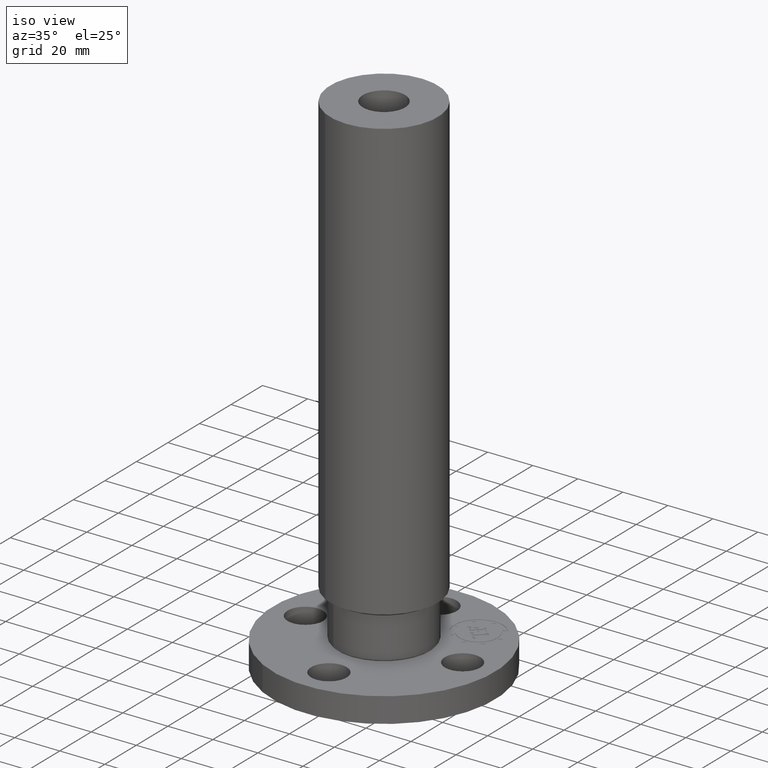
[diagram: clean part render]
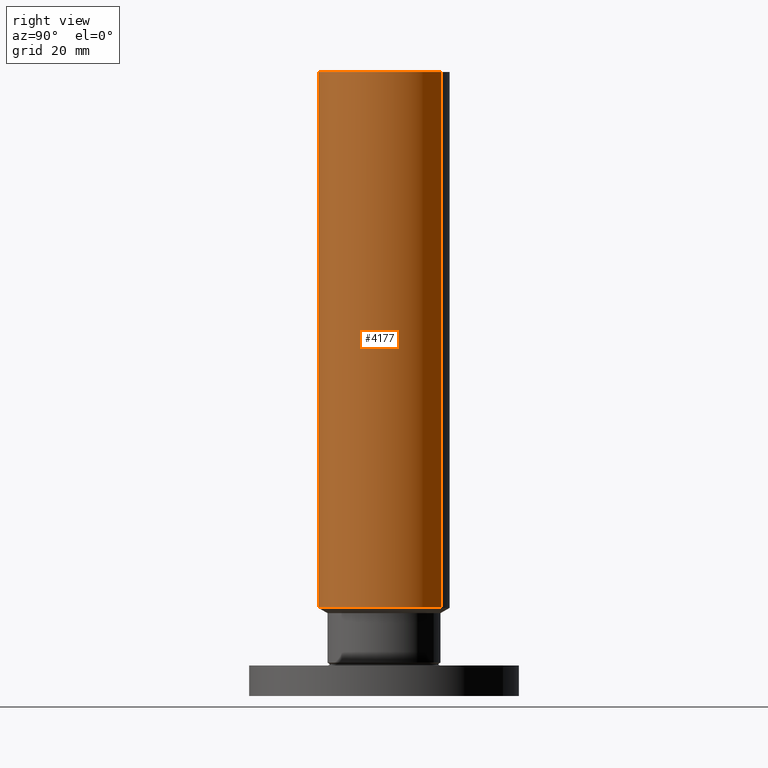
[diagram: tour spotlight — one face highlighted and labeled with its STEP entity id]
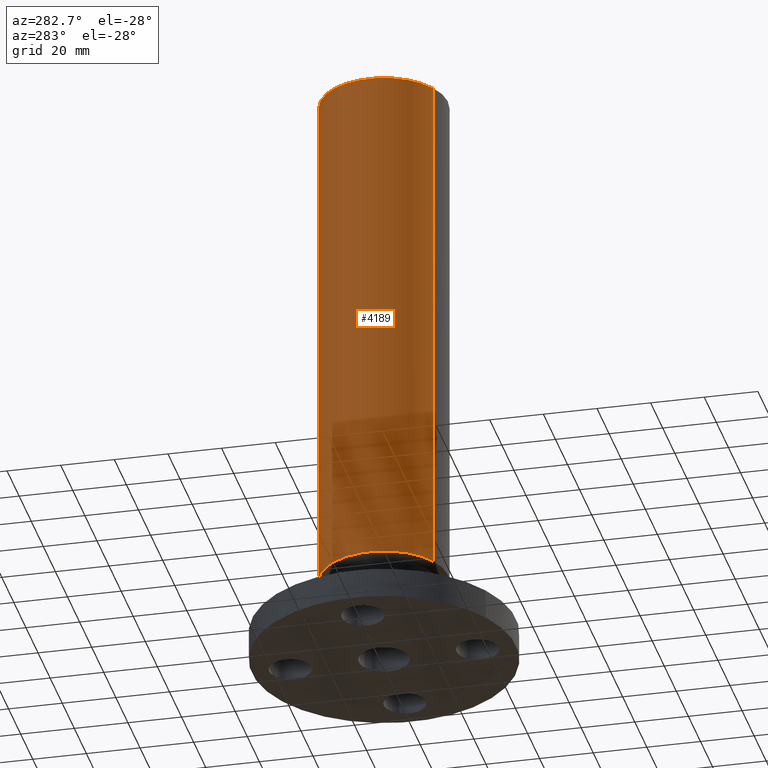
[diagram: tour spotlight — one face highlighted and labeled with its STEP entity id]
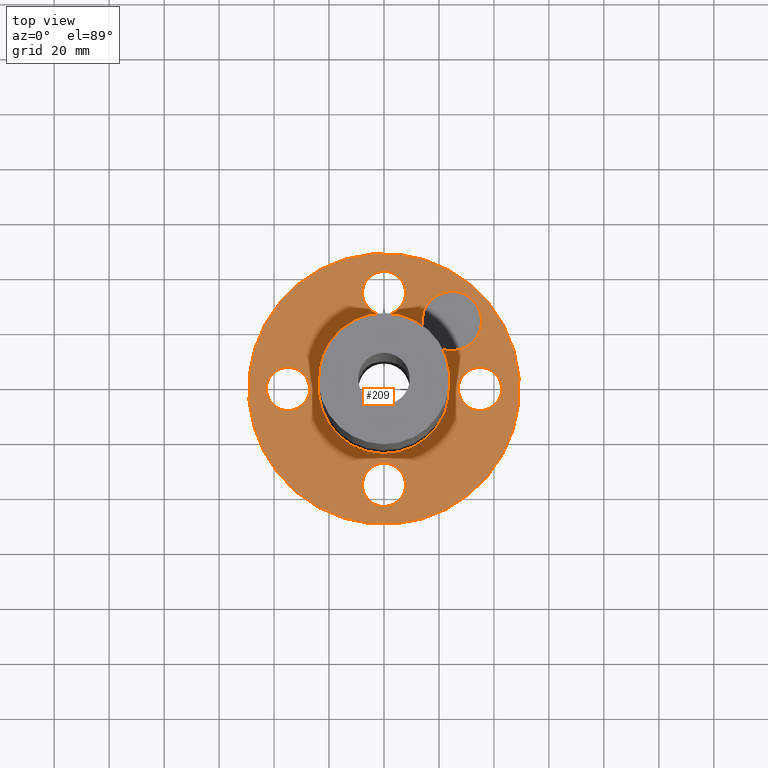
[diagram: tour spotlight — one face highlighted and labeled with its STEP entity id]
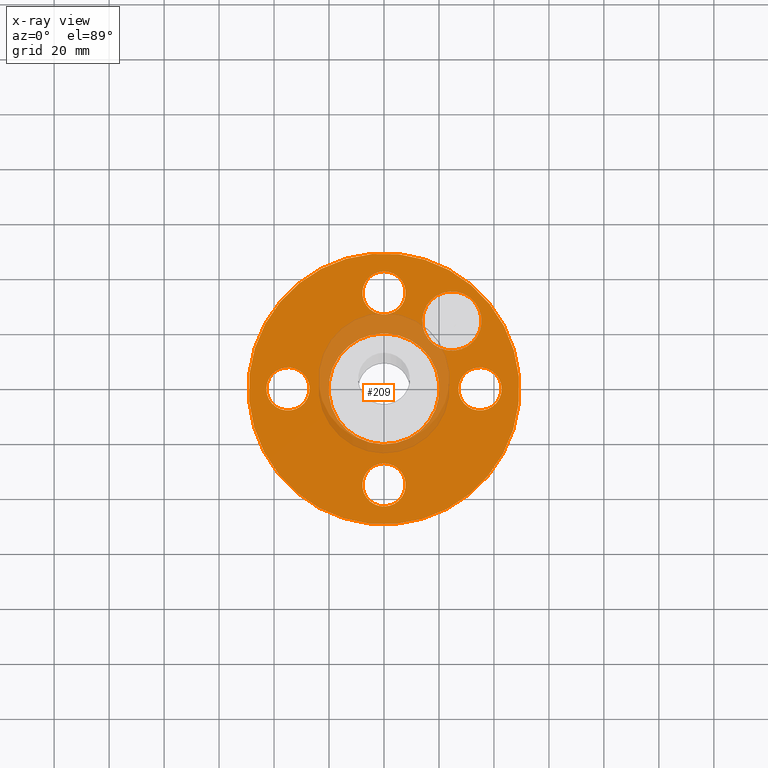
[diagram: x-ray of the same camera — body ghosted, this tour face saturated]
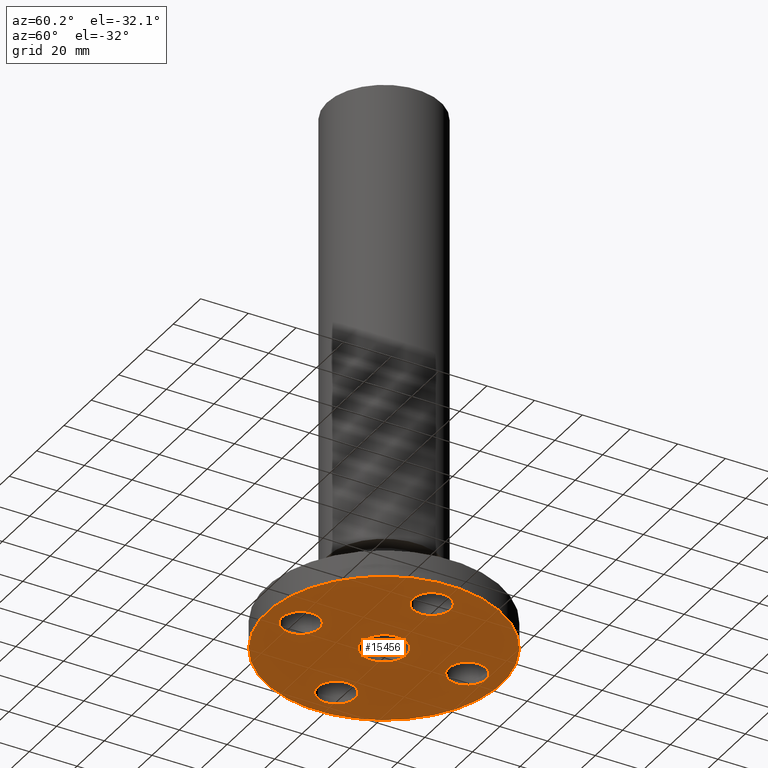
[diagram: tour spotlight — one face highlighted and labeled with its STEP entity id]
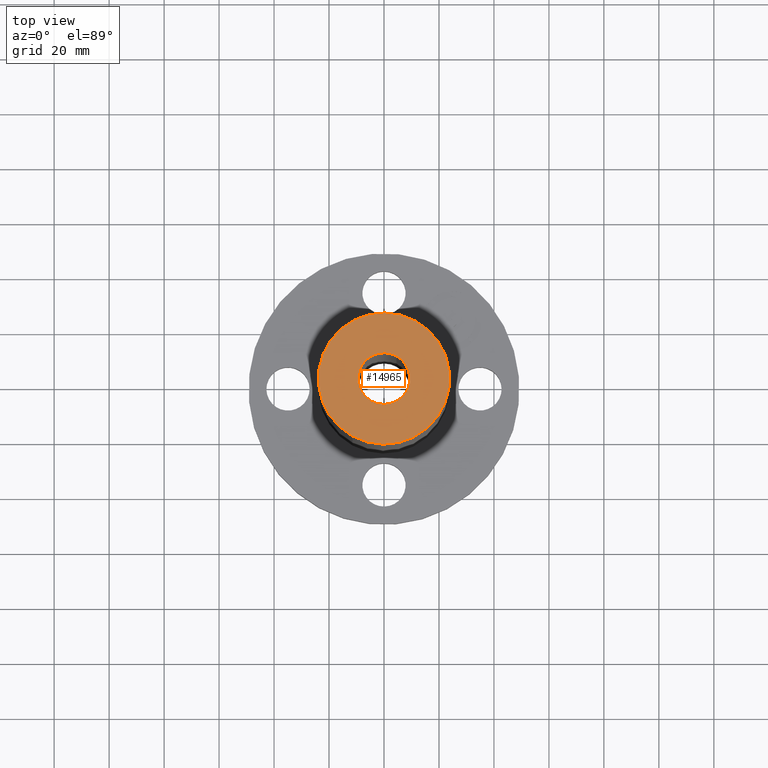
[diagram: tour spotlight — one face highlighted and labeled with its STEP entity id]
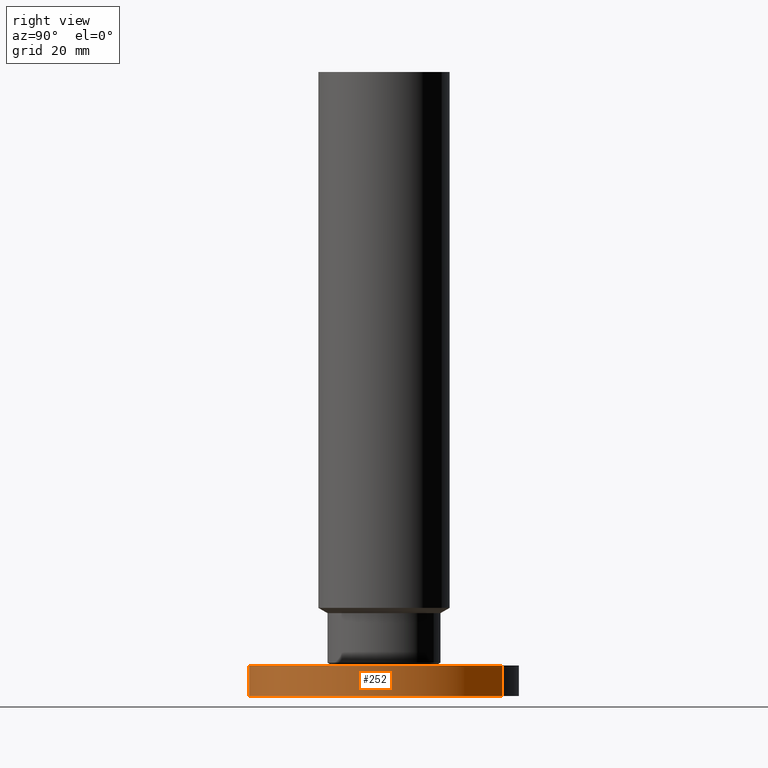
[diagram: tour spotlight — one face highlighted and labeled with its STEP entity id]
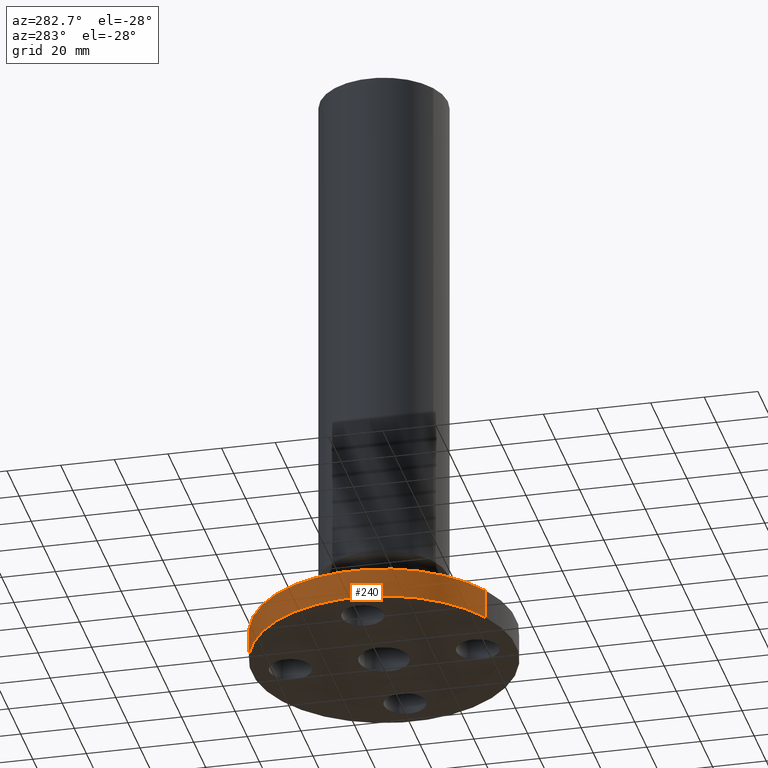
[diagram: tour spotlight — one face highlighted and labeled with its STEP entity id]
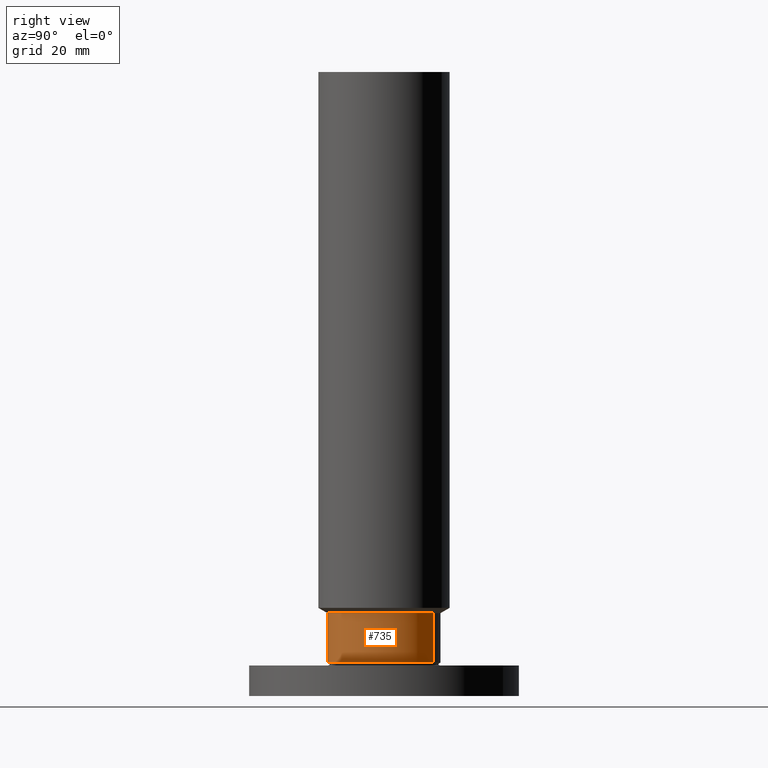
[diagram: tour spotlight — one face highlighted and labeled with its STEP entity id]
A machine part: a face-by-face anatomy tour. The part has 410 B-rep faces; the first image is the clean iso view, then the 8 largest visible faces are spotlighted one at a time (largest first), each with its STEP entity span.

Face 1 — right view, entity #4177. In plain terms, the highlighted cylindrical surface (partial cylindrical patch) has radius 23.876 mm, axis along (0, 0, -1).
Definition (entity closure, byte-faithful):
#1275=AXIS2_PLACEMENT_3D('Circle Axis2P3D',#1273,#1274,$) ;
#4150=AXIS2_PLACEMENT_3D('Cylinder Axis2P3D',#4147,#4148,#4149) ;
#4161=AXIS2_PLACEMENT_3D('Circle Axis2P3D',#4159,#4160,$) ;
#1270=CARTESIAN_POINT('Vertex',(0.45066000629,0.82492760818,1.262555535)) ;
#1273=CARTESIAN_POINT('Axis2P3D Location',(0.,0.,1.262555535)) ;
#1277=CARTESIAN_POINT('Vertex',(-0.45066000629,-0.82492760818,1.262555535)) ;
#4147=CARTESIAN_POINT('Axis2P3D Location',(0.,0.,4.43750000002)) ;
#4152=CARTESIAN_POINT('Line Origine',(0.45066000629,0.82492760818,5.10002776752)) ;
#4156=CARTESIAN_POINT('Vertex',(0.45066000629,0.82492760818,8.93750000004)) ;
#4159=CARTESIAN_POINT('Axis2P3D Location',(0.,0.,8.93750000004)) ;
#4163=CARTESIAN_POINT('Vertex',(-0.45066000629,-0.82492760818,8.93750000004)) ;
#4166=CARTESIAN_POINT('Line Origine',(-0.45066000629,-0.82492760818,5.10002776752)) ;
#1274=DIRECTION('Axis2P3D Direction',(-0.,0.,0.0393700787402)) ;
#4148=DIRECTION('Axis2P3D Direction',(0.,0.,-0.0393700787402)) ;
#4149=DIRECTION('Axis2P3D XDirection',(-0.0188750212049,-0.0345504945626,0.)) ;
#4153=DIRECTION('Vector Direction',(0.,0.,-0.0393700787402)) ;
#4160=DIRECTION('Axis2P3D Direction',(0.,0.,-0.0393700787402)) ;
#4167=DIRECTION('Vector Direction',(0.,0.,-0.0393700787402)) ;
#4154=VECTOR('Line Direction',#4153,0.0393700787402) ;
#4168=VECTOR('Line Direction',#4167,0.0393700787402) ;
#4172=ORIENTED_EDGE('',*,*,#1279,.F.) ;
#4173=ORIENTED_EDGE('',*,*,#4158,.T.) ;
#4174=ORIENTED_EDGE('',*,*,#4165,.T.) ;
#4175=ORIENTED_EDGE('',*,*,#4170,.F.) ;
#4177=ADVANCED_FACE('PartBody',(#4176),#4151,.T.) ;
#1276=CIRCLE('generated circle',#1275,0.940000000004) ;
#4162=CIRCLE('generated circle',#4161,0.940000000004) ;
#4151=CYLINDRICAL_SURFACE('generated cylinder',#4150,0.940000000004) ;
#1279=EDGE_CURVE('',#1271,#1278,#1276,.F.) ;
#4158=EDGE_CURVE('',#1271,#4157,#4155,.F.) ;
#4165=EDGE_CURVE('',#4157,#4164,#4162,.T.) ;
#4170=EDGE_CURVE('',#1278,#4164,#4169,.F.) ;
#4171=EDGE_LOOP('',(#4172,#4173,#4174,#4175)) ;
#4176=FACE_OUTER_BOUND('',#4171,.T.) ;
#4155=LINE('Line',#4152,#4154) ;
#4169=LINE('Line',#4166,#4168) ;
#1271=VERTEX_POINT('',#1270) ;
#1278=VERTEX_POINT('',#1277) ;
#4157=VERTEX_POINT('',#4156) ;
#4164=VERTEX_POINT('',#4163) ;

Face 2 — auxiliary view, entity #4189. In plain terms, the highlighted cylindrical surface (partial cylindrical patch) has radius 23.876 mm, axis along (0, 0, -1).
Definition (entity closure, byte-faithful):
#1294=AXIS2_PLACEMENT_3D('Circle Axis2P3D',#1292,#1293,$) ;
#4150=AXIS2_PLACEMENT_3D('Cylinder Axis2P3D',#4147,#4148,#4149) ;
#4180=AXIS2_PLACEMENT_3D('Circle Axis2P3D',#4178,#4179,$) ;
#1270=CARTESIAN_POINT('Vertex',(0.45066000629,0.82492760818,1.262555535)) ;
#1277=CARTESIAN_POINT('Vertex',(-0.45066000629,-0.82492760818,1.262555535)) ;
#1292=CARTESIAN_POINT('Axis2P3D Location',(0.,0.,1.262555535)) ;
#4147=CARTESIAN_POINT('Axis2P3D Location',(0.,0.,4.43750000002)) ;
#4152=CARTESIAN_POINT('Line Origine',(0.45066000629,0.82492760818,5.10002776752)) ;
#4156=CARTESIAN_POINT('Vertex',(0.45066000629,0.82492760818,8.93750000004)) ;
#4163=CARTESIAN_POINT('Vertex',(-0.45066000629,-0.82492760818,8.93750000004)) ;
#4166=CARTESIAN_POINT('Line Origine',(-0.45066000629,-0.82492760818,5.10002776752)) ;
#4178=CARTESIAN_POINT('Axis2P3D Location',(0.,0.,8.93750000004)) ;
#1293=DIRECTION('Axis2P3D Direction',(-0.,0.,0.0393700787402)) ;
#4148=DIRECTION('Axis2P3D Direction',(0.,0.,-0.0393700787402)) ;
#4149=DIRECTION('Axis2P3D XDirection',(-0.0188750212049,-0.0345504945626,0.)) ;
#4153=DIRECTION('Vector Direction',(0.,0.,-0.0393700787402)) ;
#4167=DIRECTION('Vector Direction',(0.,0.,-0.0393700787402)) ;
#4179=DIRECTION('Axis2P3D Direction',(0.,0.,-0.0393700787402)) ;
#4154=VECTOR('Line Direction',#4153,0.0393700787402) ;
#4168=VECTOR('Line Direction',#4167,0.0393700787402) ;
#4184=ORIENTED_EDGE('',*,*,#1296,.F.) ;
#4185=ORIENTED_EDGE('',*,*,#4170,.T.) ;
#4186=ORIENTED_EDGE('',*,*,#4182,.T.) ;
#4187=ORIENTED_EDGE('',*,*,#4158,.F.) ;
#4189=ADVANCED_FACE('PartBody',(#4188),#4151,.T.) ;
#1295=CIRCLE('generated circle',#1294,0.940000000004) ;
#4181=CIRCLE('generated circle',#4180,0.940000000004) ;
#4151=CYLINDRICAL_SURFACE('generated cylinder',#4150,0.940000000004) ;
#1296=EDGE_CURVE('',#1278,#1271,#1295,.F.) ;
#4158=EDGE_CURVE('',#1271,#4157,#4155,.F.) ;
#4170=EDGE_CURVE('',#1278,#4164,#4169,.F.) ;
#4182=EDGE_CURVE('',#4164,#4157,#4181,.T.) ;
#4183=EDGE_LOOP('',(#4184,#4185,#4186,#4187)) ;
#4188=FACE_OUTER_BOUND('',#4183,.T.) ;
#4155=LINE('Line',#4152,#4154) ;
#4169=LINE('Line',#4166,#4168) ;
#1271=VERTEX_POINT('',#1270) ;
#1278=VERTEX_POINT('',#1277) ;
#4157=VERTEX_POINT('',#4156) ;
#4164=VERTEX_POINT('',#4163) ;

Face 3 — top view, entity #209. An x-ray twin of the same camera follows (body ghosted, this face saturated) — the face is partly hidden behind the body. In plain terms, the highlighted planar face has unit normal (0, 0, -1).
Definition (entity closure, byte-faithful):
#51=AXIS2_PLACEMENT_3D('Circle Axis2P3D',#49,#50,$) ;
#77=AXIS2_PLACEMENT_3D('Circle Axis2P3D',#75,#76,$) ;
#95=AXIS2_PLACEMENT_3D('Plane Axis2P3D',#92,#93,#94) ;
#99=AXIS2_PLACEMENT_3D('Circle Axis2P3D',#97,#98,$) ;
#108=AXIS2_PLACEMENT_3D('Circle Axis2P3D',#106,#107,$) ;
#121=AXIS2_PLACEMENT_3D('Circle Axis2P3D',#119,#120,$) ;
#130=AXIS2_PLACEMENT_3D('Circle Axis2P3D',#128,#129,$) ;
#139=AXIS2_PLACEMENT_3D('Circle Axis2P3D',#137,#138,$) ;
#148=AXIS2_PLACEMENT_3D('Circle Axis2P3D',#146,#147,$) ;
#157=AXIS2_PLACEMENT_3D('Circle Axis2P3D',#155,#156,$) ;
#166=AXIS2_PLACEMENT_3D('Circle Axis2P3D',#164,#165,$) ;
#175=AXIS2_PLACEMENT_3D('Circle Axis2P3D',#173,#174,$) ;
#184=AXIS2_PLACEMENT_3D('Circle Axis2P3D',#182,#183,$) ;
#193=AXIS2_PLACEMENT_3D('Circle Axis2P3D',#191,#192,$) ;
#202=AXIS2_PLACEMENT_3D('Circle Axis2P3D',#200,#201,$) ;
#44=CARTESIAN_POINT('Vertex',(1.10294940582,-0.148621916968,0.437500000002)) ;
#49=CARTESIAN_POINT('Axis2P3D Location',(1.37500000001,0.,0.437500000002)) ;
#53=CARTESIAN_POINT('Vertex',(1.64705059419,0.148621916968,0.437500000002)) ;
#75=CARTESIAN_POINT('Axis2P3D Location',(1.37500000001,0.,0.437500000002)) ;
#92=CARTESIAN_POINT('Axis2P3D Location',(0.,1.94000000001,0.437500000002)) ;
#97=CARTESIAN_POINT('Axis2P3D Location',(0.,0.,0.437500000002)) ;
#101=CARTESIAN_POINT('Vertex',(0.930085544896,1.70251017007,0.437500000002)) ;
#103=CARTESIAN_POINT('Vertex',(-0.930085544896,-1.70251017007,0.437500000002)) ;
#106=CARTESIAN_POINT('Axis2P3D Location',(0.,0.,0.437500000002)) ;
#119=CARTESIAN_POINT('Axis2P3D Location',(0.,0.,0.437500000002)) ;
#123=CARTESIAN_POINT('Vertex',(-0.381143303192,-0.697678136706,0.437500000002)) ;
#125=CARTESIAN_POINT('Vertex',(0.381143303192,0.697678136706,0.437500000002)) ;
#128=CARTESIAN_POINT('Axis2P3D Location',(0.,0.,0.437500000002)) ;
#137=CARTESIAN_POINT('Axis2P3D Location',(-6.99353086378E-017,-1.37500000001,0.437500000002)) ;
#141=CARTESIAN_POINT('Vertex',(-0.148621916968,-1.10294940582,0.437500000002)) ;
#143=CARTESIAN_POINT('Vertex',(0.148621916968,-1.64705059419,0.437500000002)) ;
#146=CARTESIAN_POINT('Axis2P3D Location',(-2.44773580232E-016,-1.37500000001,0.437500000002)) ;
#155=CARTESIAN_POINT('Axis2P3D Location',(-1.37500000001,0.,0.437500000002)) ;
#159=CARTESIAN_POINT('Vertex',(-1.10294940582,0.148621916968,0.437500000002)) ;
#161=CARTESIAN_POINT('Vertex',(-1.64705059419,-0.148621916968,0.437500000002)) ;
#164=CARTESIAN_POINT('Axis2P3D Location',(-1.37500000001,-2.79741234551E-016,0.437500000002)) ;
#173=CARTESIAN_POINT('Axis2P3D Location',(-2.09805925913E-016,1.37500000001,0.437500000002)) ;
#177=CARTESIAN_POINT('Vertex',(0.148621916968,1.10294940582,0.437500000002)) ;
#179=CARTESIAN_POINT('Vertex',(-0.148621916968,1.64705059419,0.437500000002)) ;
#182=CARTESIAN_POINT('Axis2P3D Location',(-2.44773580232E-016,1.37500000001,0.437500000002)) ;
#191=CARTESIAN_POINT('Axis2P3D Location',(0.972271824135,0.972271824135,0.437500000002)) ;
#195=CARTESIAN_POINT('Vertex',(1.27279220314,0.671751445135,0.437500000002)) ;
#197=CARTESIAN_POINT('Vertex',(0.671751445135,1.27279220314,0.437500000002)) ;
#200=CARTESIAN_POINT('Axis2P3D Location',(0.972271824135,0.972271824135,0.437500000002)) ;
#50=DIRECTION('Axis2P3D Direction',(0.,-0.,0.0393700787402)) ;
#76=DIRECTION('Axis2P3D Direction',(0.,-0.,0.0393700787402)) ;
#93=DIRECTION('Axis2P3D Direction',(0.,0.,-0.0393700787402)) ;
#94=DIRECTION('Axis2P3D XDirection',(0.0393700787402,0.,0.)) ;
#98=DIRECTION('Axis2P3D Direction',(0.,0.,-0.0393700787402)) ;
#107=DIRECTION('Axis2P3D Direction',(0.,0.,-0.0393700787402)) ;
#120=DIRECTION('Axis2P3D Direction',(0.,0.,-0.0393700787402)) ;
#129=DIRECTION('Axis2P3D Direction',(0.,0.,-0.0393700787402)) ;
#138=DIRECTION('Axis2P3D Direction',(0.,0.,-0.0393700787402)) ;
#147=DIRECTION('Axis2P3D Direction',(0.,0.,-0.0393700787402)) ;
#156=DIRECTION('Axis2P3D Direction',(0.,0.,-0.0393700787402)) ;
#165=DIRECTION('Axis2P3D Direction',(0.,0.,-0.0393700787402)) ;
#174=DIRECTION('Axis2P3D Direction',(0.,0.,-0.0393700787402)) ;
#183=DIRECTION('Axis2P3D Direction',(0.,0.,-0.0393700787402)) ;
#192=DIRECTION('Axis2P3D Direction',(0.,0.,-0.0393700787402)) ;
#201=DIRECTION('Axis2P3D Direction',(0.,0.,-0.0393700787402)) ;
#112=ORIENTED_EDGE('',*,*,#105,.F.) ;
#113=ORIENTED_EDGE('',*,*,#110,.F.) ;
#116=ORIENTED_EDGE('',*,*,#55,.T.) ;
#117=ORIENTED_EDGE('',*,*,#79,.T.) ;
#134=ORIENTED_EDGE('',*,*,#127,.T.) ;
#135=ORIENTED_EDGE('',*,*,#132,.T.) ;
#152=ORIENTED_EDGE('',*,*,#145,.T.) ;
#153=ORIENTED_EDGE('',*,*,#150,.T.) ;
#170=ORIENTED_EDGE('',*,*,#163,.T.) ;
#171=ORIENTED_EDGE('',*,*,#168,.T.) ;
#188=ORIENTED_EDGE('',*,*,#181,.T.) ;
#189=ORIENTED_EDGE('',*,*,#186,.T.) ;
#206=ORIENTED_EDGE('',*,*,#199,.F.) ;
#207=ORIENTED_EDGE('',*,*,#204,.F.) ;
#118=FACE_BOUND('',#115,.T.) ;
#136=FACE_BOUND('',#133,.T.) ;
#154=FACE_BOUND('',#151,.T.) ;
#172=FACE_BOUND('',#169,.T.) ;
#190=FACE_BOUND('',#187,.T.) ;
#208=FACE_BOUND('',#205,.T.) ;
#209=ADVANCED_FACE('PartBody',(#114,#118,#136,#154,#172,#190,#208),#96,.F.) ;
#52=CIRCLE('generated circle',#51,0.310000000001) ;
#78=CIRCLE('generated circle',#77,0.310000000001) ;
#100=CIRCLE('generated circle',#99,1.94000000001) ;
#109=CIRCLE('generated circle',#108,1.94000000001) ;
#122=CIRCLE('generated circle',#121,0.795000000003) ;
#131=CIRCLE('generated circle',#130,0.795000000003) ;
#140=CIRCLE('generated circle',#139,0.310000000001) ;
#149=CIRCLE('generated circle',#148,0.310000000001) ;
#158=CIRCLE('generated circle',#157,0.310000000001) ;
#167=CIRCLE('generated circle',#166,0.310000000001) ;
#176=CIRCLE('generated circle',#175,0.310000000001) ;
#185=CIRCLE('generated circle',#184,0.310000000001) ;
#194=CIRCLE('generated circle',#193,0.424999995752) ;
#203=CIRCLE('generated circle',#202,0.424999995752) ;
#55=EDGE_CURVE('',#54,#45,#52,.F.) ;
#79=EDGE_CURVE('',#45,#54,#78,.F.) ;
#105=EDGE_CURVE('',#102,#104,#100,.T.) ;
#110=EDGE_CURVE('',#104,#102,#109,.T.) ;
#127=EDGE_CURVE('',#124,#126,#122,.T.) ;
#132=EDGE_CURVE('',#126,#124,#131,.T.) ;
#145=EDGE_CURVE('',#142,#144,#140,.T.) ;
#150=EDGE_CURVE('',#144,#142,#149,.T.) ;
#163=EDGE_CURVE('',#160,#162,#158,.T.) ;
#168=EDGE_CURVE('',#162,#160,#167,.T.) ;
#181=EDGE_CURVE('',#178,#180,#176,.T.) ;
#186=EDGE_CURVE('',#180,#178,#185,.T.) ;
#199=EDGE_CURVE('',#196,#198,#194,.F.) ;
#204=EDGE_CURVE('',#198,#196,#203,.F.) ;
#111=EDGE_LOOP('',(#112,#113)) ;
#115=EDGE_LOOP('',(#116,#117)) ;
#133=EDGE_LOOP('',(#134,#135)) ;
#151=EDGE_LOOP('',(#152,#153)) ;
#169=EDGE_LOOP('',(#170,#171)) ;
#187=EDGE_LOOP('',(#188,#189)) ;
#205=EDGE_LOOP('',(#206,#207)) ;
#114=FACE_OUTER_BOUND('',#111,.T.) ;
#96=PLANE('',#95) ;
#45=VERTEX_POINT('',#44) ;
#54=VERTEX_POINT('',#53) ;
#102=VERTEX_POINT('',#101) ;
#104=VERTEX_POINT('',#103) ;
#124=VERTEX_POINT('',#123) ;
#126=VERTEX_POINT('',#125) ;
#142=VERTEX_POINT('',#141) ;
#144=VERTEX_POINT('',#143) ;
#160=VERTEX_POINT('',#159) ;
#162=VERTEX_POINT('',#161) ;
#178=VERTEX_POINT('',#177) ;
#180=VERTEX_POINT('',#179) ;
#196=VERTEX_POINT('',#195) ;
#198=VERTEX_POINT('',#197) ;

Face 4 — auxiliary view, entity #15456. In plain terms, the highlighted planar face has unit normal (0, 0, 1).
Definition (entity closure, byte-faithful):
#65=AXIS2_PLACEMENT_3D('Circle Axis2P3D',#63,#64,$) ;
#82=AXIS2_PLACEMENT_3D('Circle Axis2P3D',#80,#81,$) ;
#217=AXIS2_PLACEMENT_3D('Circle Axis2P3D',#215,#216,$) ;
#243=AXIS2_PLACEMENT_3D('Circle Axis2P3D',#241,#242,$) ;
#317=AXIS2_PLACEMENT_3D('Circle Axis2P3D',#315,#316,$) ;
#329=AXIS2_PLACEMENT_3D('Circle Axis2P3D',#327,#328,$) ;
#360=AXIS2_PLACEMENT_3D('Circle Axis2P3D',#358,#359,$) ;
#372=AXIS2_PLACEMENT_3D('Circle Axis2P3D',#370,#371,$) ;
#403=AXIS2_PLACEMENT_3D('Circle Axis2P3D',#401,#402,$) ;
#415=AXIS2_PLACEMENT_3D('Circle Axis2P3D',#413,#414,$) ;
#15391=AXIS2_PLACEMENT_3D('Circle Axis2P3D',#15389,#15390,$) ;
#15417=AXIS2_PLACEMENT_3D('Circle Axis2P3D',#15415,#15416,$) ;
#15430=AXIS2_PLACEMENT_3D('Plane Axis2P3D',#15427,#15428,#15429) ;
#46=CARTESIAN_POINT('Vertex',(1.10294940582,-0.148621916968,2.2401153548E-016)) ;
#60=CARTESIAN_POINT('Vertex',(1.64705059419,0.148621916968,2.2401153548E-016)) ;
#63=CARTESIAN_POINT('Axis2P3D Location',(1.37500000001,0.,0.)) ;
#80=CARTESIAN_POINT('Axis2P3D Location',(1.37500000001,0.,0.)) ;
#215=CARTESIAN_POINT('Axis2P3D Location',(0.,0.,0.)) ;
#219=CARTESIAN_POINT('Vertex',(-0.930085544896,-1.70251017007,0.)) ;
#221=CARTESIAN_POINT('Vertex',(0.930085544896,1.70251017007,0.)) ;
#241=CARTESIAN_POINT('Axis2P3D Location',(0.,0.,0.)) ;
#305=CARTESIAN_POINT('Vertex',(-0.148621916968,-1.10294940582,2.2401153548E-016)) ;
#312=CARTESIAN_POINT('Vertex',(0.148621916968,-1.64705059419,2.2401153548E-016)) ;
#315=CARTESIAN_POINT('Axis2P3D Location',(-1.9554676711E-016,-1.37500000001,0.)) ;
#327=CARTESIAN_POINT('Axis2P3D Location',(-1.9554676711E-016,-1.37500000001,0.)) ;
#348=CARTESIAN_POINT('Vertex',(-1.10294940582,0.148621916968,2.2401153548E-016)) ;
#355=CARTESIAN_POINT('Vertex',(-1.64705059419,-0.148621916968,2.2401153548E-016)) ;
#358=CARTESIAN_POINT('Axis2P3D Location',(-1.37500000001,-1.68388934883E-016,0.)) ;
#370=CARTESIAN_POINT('Axis2P3D Location',(-1.37500000001,-1.68388934883E-016,0.)) ;
#391=CARTESIAN_POINT('Vertex',(0.148621916968,1.10294940582,2.2401153548E-016)) ;
#398=CARTESIAN_POINT('Vertex',(-0.148621916968,1.64705059419,2.2401153548E-016)) ;
#401=CARTESIAN_POINT('Axis2P3D Location',(-2.52583402325E-016,1.37500000001,0.)) ;
#413=CARTESIAN_POINT('Axis2P3D Location',(-2.52583402325E-016,1.37500000001,0.)) ;
#15389=CARTESIAN_POINT('Axis2P3D Location',(0.,0.,0.)) ;
#15393=CARTESIAN_POINT('Vertex',(-0.177387449284,-0.324705547901,0.)) ;
#15395=CARTESIAN_POINT('Vertex',(0.177387449284,0.324705547901,0.)) ;
#15415=CARTESIAN_POINT('Axis2P3D Location',(0.,0.,0.)) ;
#15427=CARTESIAN_POINT('Axis2P3D Location',(0.,0.,0.)) ;
#64=DIRECTION('Axis2P3D Direction',(0.,-0.,0.0393700787402)) ;
#81=DIRECTION('Axis2P3D Direction',(0.,-0.,0.0393700787402)) ;
#216=DIRECTION('Axis2P3D Direction',(0.,0.,-0.0393700787402)) ;
#242=DIRECTION('Axis2P3D Direction',(0.,0.,-0.0393700787402)) ;
#316=DIRECTION('Axis2P3D Direction',(-0.,0.,0.0393700787402)) ;
#328=DIRECTION('Axis2P3D Direction',(-0.,0.,0.0393700787402)) ;
#359=DIRECTION('Axis2P3D Direction',(0.,0.,0.0393700787402)) ;
#371=DIRECTION('Axis2P3D Direction',(0.,0.,0.0393700787402)) ;
#402=DIRECTION('Axis2P3D Direction',(0.,0.,0.0393700787402)) ;
#414=DIRECTION('Axis2P3D Direction',(0.,0.,0.0393700787402)) ;
#15390=DIRECTION('Axis2P3D Direction',(0.,0.,-0.0393700787402)) ;
#15416=DIRECTION('Axis2P3D Direction',(0.,0.,-0.0393700787402)) ;
#15428=DIRECTION('Axis2P3D Direction',(0.,0.,0.0393700787402)) ;
#15429=DIRECTION('Axis2P3D XDirection',(0.0393700787402,0.,0.)) ;
#15433=ORIENTED_EDGE('',*,*,#245,.T.) ;
#15434=ORIENTED_EDGE('',*,*,#223,.T.) ;
#15437=ORIENTED_EDGE('',*,*,#405,.F.) ;
#15438=ORIENTED_EDGE('',*,*,#417,.F.) ;
#15441=ORIENTED_EDGE('',*,*,#362,.F.) ;
#15442=ORIENTED_EDGE('',*,*,#374,.F.) ;
#15445=ORIENTED_EDGE('',*,*,#319,.F.) ;
#15446=ORIENTED_EDGE('',*,*,#331,.F.) ;
#15449=ORIENTED_EDGE('',*,*,#84,.F.) ;
#15450=ORIENTED_EDGE('',*,*,#67,.F.) ;
#15453=ORIENTED_EDGE('',*,*,#15419,.T.) ;
#15454=ORIENTED_EDGE('',*,*,#15397,.T.) ;
#15439=FACE_BOUND('',#15436,.T.) ;
#15443=FACE_BOUND('',#15440,.T.) ;
#15447=FACE_BOUND('',#15444,.T.) ;
#15451=FACE_BOUND('',#15448,.T.) ;
#15455=FACE_BOUND('',#15452,.T.) ;
#15456=ADVANCED_FACE('PartBody',(#15435,#15439,#15443,#15447,#15451,#15455),#15431,.F.) ;
#66=CIRCLE('generated circle',#65,0.310000000001) ;
#83=CIRCLE('generated circle',#82,0.310000000001) ;
#218=CIRCLE('generated circle',#217,1.94000000001) ;
#244=CIRCLE('generated circle',#243,1.94000000001) ;
#318=CIRCLE('generated circle',#317,0.310000000001) ;
#330=CIRCLE('generated circle',#329,0.310000000001) ;
#361=CIRCLE('generated circle',#360,0.310000000001) ;
#373=CIRCLE('generated circle',#372,0.310000000001) ;
#404=CIRCLE('generated circle',#403,0.310000000001) ;
#416=CIRCLE('generated circle',#415,0.310000000001) ;
#15392=CIRCLE('generated circle',#15391,0.370000000001) ;
#15418=CIRCLE('generated circle',#15417,0.370000000001) ;
#67=EDGE_CURVE('',#61,#47,#66,.F.) ;
#84=EDGE_CURVE('',#47,#61,#83,.F.) ;
#223=EDGE_CURVE('',#220,#222,#218,.T.) ;
#245=EDGE_CURVE('',#222,#220,#244,.T.) ;
#319=EDGE_CURVE('',#313,#306,#318,.F.) ;
#331=EDGE_CURVE('',#306,#313,#330,.F.) ;
#362=EDGE_CURVE('',#356,#349,#361,.F.) ;
#374=EDGE_CURVE('',#349,#356,#373,.F.) ;
#405=EDGE_CURVE('',#399,#392,#404,.F.) ;
#417=EDGE_CURVE('',#392,#399,#416,.F.) ;
#15397=EDGE_CURVE('',#15394,#15396,#15392,.F.) ;
#15419=EDGE_CURVE('',#15396,#15394,#15418,.F.) ;
#15432=EDGE_LOOP('',(#15433,#15434)) ;
#15436=EDGE_LOOP('',(#15437,#15438)) ;
#15440=EDGE_LOOP('',(#15441,#15442)) ;
#15444=EDGE_LOOP('',(#15445,#15446)) ;
#15448=EDGE_LOOP('',(#15449,#15450)) ;
#15452=EDGE_LOOP('',(#15453,#15454)) ;
#15435=FACE_OUTER_BOUND('',#15432,.T.) ;
#15431=PLANE('',#15430) ;
#47=VERTEX_POINT('',#46) ;
#61=VERTEX_POINT('',#60) ;
#220=VERTEX_POINT('',#219) ;
#222=VERTEX_POINT('',#221) ;
#306=VERTEX_POINT('',#305) ;
#313=VERTEX_POINT('',#312) ;
#349=VERTEX_POINT('',#348) ;
#356=VERTEX_POINT('',#355) ;
#392=VERTEX_POINT('',#391) ;
#399=VERTEX_POINT('',#398) ;
#15394=VERTEX_POINT('',#15393) ;
#15396=VERTEX_POINT('',#15395) ;

Face 5 — top view, entity #14965. In plain terms, the highlighted planar face has unit normal (0, 0, -1).
Definition (entity closure, byte-faithful):
#4161=AXIS2_PLACEMENT_3D('Circle Axis2P3D',#4159,#4160,$) ;
#4180=AXIS2_PLACEMENT_3D('Circle Axis2P3D',#4178,#4179,$) ;
#14941=AXIS2_PLACEMENT_3D('Plane Axis2P3D',#14938,#14939,#14940) ;
#14949=AXIS2_PLACEMENT_3D('Circle Axis2P3D',#14947,#14948,$) ;
#14958=AXIS2_PLACEMENT_3D('Circle Axis2P3D',#14956,#14957,$) ;
#4156=CARTESIAN_POINT('Vertex',(0.45066000629,0.82492760818,8.93750000004)) ;
#4159=CARTESIAN_POINT('Axis2P3D Location',(0.,0.,8.93750000004)) ;
#4163=CARTESIAN_POINT('Vertex',(-0.45066000629,-0.82492760818,8.93750000004)) ;
#4178=CARTESIAN_POINT('Axis2P3D Location',(0.,0.,8.93750000004)) ;
#14938=CARTESIAN_POINT('Axis2P3D Location',(0.,0.940000000004,8.93750000004)) ;
#14947=CARTESIAN_POINT('Axis2P3D Location',(0.,0.,8.93750000004)) ;
#14951=CARTESIAN_POINT('Vertex',(-0.177387449284,-0.324705547901,8.93750000004)) ;
#14953=CARTESIAN_POINT('Vertex',(0.177387449284,0.324705547901,8.93750000004)) ;
#14956=CARTESIAN_POINT('Axis2P3D Location',(0.,0.,8.93750000004)) ;
#4160=DIRECTION('Axis2P3D Direction',(0.,0.,-0.0393700787402)) ;
#4179=DIRECTION('Axis2P3D Direction',(0.,0.,-0.0393700787402)) ;
#14939=DIRECTION('Axis2P3D Direction',(0.,0.,-0.0393700787402)) ;
#14940=DIRECTION('Axis2P3D XDirection',(0.0393700787402,0.,0.)) ;
#14948=DIRECTION('Axis2P3D Direction',(0.,0.,-0.0393700787402)) ;
#14957=DIRECTION('Axis2P3D Direction',(0.,0.,-0.0393700787402)) ;
#14944=ORIENTED_EDGE('',*,*,#4165,.F.) ;
#14945=ORIENTED_EDGE('',*,*,#4182,.F.) ;
#14962=ORIENTED_EDGE('',*,*,#14955,.T.) ;
#14963=ORIENTED_EDGE('',*,*,#14960,.T.) ;
#14964=FACE_BOUND('',#14961,.T.) ;
#14965=ADVANCED_FACE('PartBody',(#14946,#14964),#14942,.F.) ;
#4162=CIRCLE('generated circle',#4161,0.940000000004) ;
#4181=CIRCLE('generated circle',#4180,0.940000000004) ;
#14950=CIRCLE('generated circle',#14949,0.370000000001) ;
#14959=CIRCLE('generated circle',#14958,0.370000000001) ;
#4165=EDGE_CURVE('',#4157,#4164,#4162,.T.) ;
#4182=EDGE_CURVE('',#4164,#4157,#4181,.T.) ;
#14955=EDGE_CURVE('',#14952,#14954,#14950,.T.) ;
#14960=EDGE_CURVE('',#14954,#14952,#14959,.T.) ;
#14943=EDGE_LOOP('',(#14944,#14945)) ;
#14961=EDGE_LOOP('',(#14962,#14963)) ;
#14946=FACE_OUTER_BOUND('',#14943,.T.) ;
#14942=PLANE('',#14941) ;
#4157=VERTEX_POINT('',#4156) ;
#4164=VERTEX_POINT('',#4163) ;
#14952=VERTEX_POINT('',#14951) ;
#14954=VERTEX_POINT('',#14953) ;

Face 6 — right view, entity #252. In plain terms, the highlighted cylindrical surface (partial cylindrical patch) has radius 49.276 mm, axis along (0, 0, -1).
Definition (entity closure, byte-faithful):
#99=AXIS2_PLACEMENT_3D('Circle Axis2P3D',#97,#98,$) ;
#213=AXIS2_PLACEMENT_3D('Cylinder Axis2P3D',#210,#211,#212) ;
#243=AXIS2_PLACEMENT_3D('Circle Axis2P3D',#241,#242,$) ;
#97=CARTESIAN_POINT('Axis2P3D Location',(0.,0.,0.437500000002)) ;
#101=CARTESIAN_POINT('Vertex',(0.930085544896,1.70251017007,0.437500000002)) ;
#103=CARTESIAN_POINT('Vertex',(-0.930085544896,-1.70251017007,0.437500000002)) ;
#210=CARTESIAN_POINT('Axis2P3D Location',(0.,0.,4.43750000002)) ;
#219=CARTESIAN_POINT('Vertex',(-0.930085544896,-1.70251017007,0.)) ;
#221=CARTESIAN_POINT('Vertex',(0.930085544896,1.70251017007,0.)) ;
#224=CARTESIAN_POINT('Line Origine',(-0.930085544896,-1.70251017007,0.218750000001)) ;
#229=CARTESIAN_POINT('Line Origine',(0.930085544896,1.70251017007,0.218750000001)) ;
#241=CARTESIAN_POINT('Axis2P3D Location',(0.,0.,0.)) ;
#98=DIRECTION('Axis2P3D Direction',(0.,0.,-0.0393700787402)) ;
#211=DIRECTION('Axis2P3D Direction',(0.,0.,-0.0393700787402)) ;
#212=DIRECTION('Axis2P3D XDirection',(0.0188750212049,0.0345504945626,0.)) ;
#225=DIRECTION('Vector Direction',(0.,0.,-0.0393700787402)) ;
#230=DIRECTION('Vector Direction',(0.,0.,-0.0393700787402)) ;
#242=DIRECTION('Axis2P3D Direction',(0.,0.,-0.0393700787402)) ;
#226=VECTOR('Line Direction',#225,0.0393700787402) ;
#231=VECTOR('Line Direction',#230,0.0393700787402) ;
#247=ORIENTED_EDGE('',*,*,#245,.F.) ;
#248=ORIENTED_EDGE('',*,*,#233,.T.) ;
#249=ORIENTED_EDGE('',*,*,#105,.T.) ;
#250=ORIENTED_EDGE('',*,*,#228,.F.) ;
#252=ADVANCED_FACE('PartBody',(#251),#214,.T.) ;
#100=CIRCLE('generated circle',#99,1.94000000001) ;
#244=CIRCLE('generated circle',#243,1.94000000001) ;
#214=CYLINDRICAL_SURFACE('generated cylinder',#213,1.94000000001) ;
#105=EDGE_CURVE('',#102,#104,#100,.T.) ;
#228=EDGE_CURVE('',#220,#104,#227,.F.) ;
#233=EDGE_CURVE('',#222,#102,#232,.F.) ;
#245=EDGE_CURVE('',#222,#220,#244,.T.) ;
#246=EDGE_LOOP('',(#247,#248,#249,#250)) ;
#251=FACE_OUTER_BOUND('',#246,.T.) ;
#227=LINE('Line',#224,#226) ;
#232=LINE('Line',#229,#231) ;
#102=VERTEX_POINT('',#101) ;
#104=VERTEX_POINT('',#103) ;
#220=VERTEX_POINT('',#219) ;
#222=VERTEX_POINT('',#221) ;

Face 7 — auxiliary view, entity #240. In plain terms, the highlighted cylindrical surface (partial cylindrical patch) has radius 49.276 mm, axis along (0, 0, -1).
Definition (entity closure, byte-faithful):
#108=AXIS2_PLACEMENT_3D('Circle Axis2P3D',#106,#107,$) ;
#213=AXIS2_PLACEMENT_3D('Cylinder Axis2P3D',#210,#211,#212) ;
#217=AXIS2_PLACEMENT_3D('Circle Axis2P3D',#215,#216,$) ;
#101=CARTESIAN_POINT('Vertex',(0.930085544896,1.70251017007,0.437500000002)) ;
#103=CARTESIAN_POINT('Vertex',(-0.930085544896,-1.70251017007,0.437500000002)) ;
#106=CARTESIAN_POINT('Axis2P3D Location',(0.,0.,0.437500000002)) ;
#210=CARTESIAN_POINT('Axis2P3D Location',(0.,0.,4.43750000002)) ;
#215=CARTESIAN_POINT('Axis2P3D Location',(0.,0.,0.)) ;
#219=CARTESIAN_POINT('Vertex',(-0.930085544896,-1.70251017007,0.)) ;
#221=CARTESIAN_POINT('Vertex',(0.930085544896,1.70251017007,0.)) ;
#224=CARTESIAN_POINT('Line Origine',(-0.930085544896,-1.70251017007,0.218750000001)) ;
#229=CARTESIAN_POINT('Line Origine',(0.930085544896,1.70251017007,0.218750000001)) ;
#107=DIRECTION('Axis2P3D Direction',(0.,0.,-0.0393700787402)) ;
#211=DIRECTION('Axis2P3D Direction',(0.,0.,-0.0393700787402)) ;
#212=DIRECTION('Axis2P3D XDirection',(0.0188750212049,0.0345504945626,0.)) ;
#216=DIRECTION('Axis2P3D Direction',(0.,0.,-0.0393700787402)) ;
#225=DIRECTION('Vector Direction',(0.,0.,-0.0393700787402)) ;
#230=DIRECTION('Vector Direction',(0.,0.,-0.0393700787402)) ;
#226=VECTOR('Line Direction',#225,0.0393700787402) ;
#231=VECTOR('Line Direction',#230,0.0393700787402) ;
#235=ORIENTED_EDGE('',*,*,#223,.F.) ;
#236=ORIENTED_EDGE('',*,*,#228,.T.) ;
#237=ORIENTED_EDGE('',*,*,#110,.T.) ;
#238=ORIENTED_EDGE('',*,*,#233,.F.) ;
#240=ADVANCED_FACE('PartBody',(#239),#214,.T.) ;
#109=CIRCLE('generated circle',#108,1.94000000001) ;
#218=CIRCLE('generated circle',#217,1.94000000001) ;
#214=CYLINDRICAL_SURFACE('generated cylinder',#213,1.94000000001) ;
#110=EDGE_CURVE('',#104,#102,#109,.T.) ;
#223=EDGE_CURVE('',#220,#222,#218,.T.) ;
#228=EDGE_CURVE('',#220,#104,#227,.F.) ;
#233=EDGE_CURVE('',#222,#102,#232,.F.) ;
#234=EDGE_LOOP('',(#235,#236,#237,#238)) ;
#239=FACE_OUTER_BOUND('',#234,.T.) ;
#227=LINE('Line',#224,#226) ;
#232=LINE('Line',#229,#231) ;
#102=VERTEX_POINT('',#101) ;
#104=VERTEX_POINT('',#103) ;
#220=VERTEX_POINT('',#219) ;
#222=VERTEX_POINT('',#221) ;

Face 8 — right view, entity #735. In plain terms, the highlighted cylindrical surface (partial cylindrical patch) has radius 20.574 mm, axis along (0, 0, -1).
Definition (entity closure, byte-faithful):
#497=AXIS2_PLACEMENT_3D('Circle Axis2P3D',#495,#496,$) ;
#708=AXIS2_PLACEMENT_3D('Cylinder Axis2P3D',#705,#706,#707) ;
#719=AXIS2_PLACEMENT_3D('Circle Axis2P3D',#717,#718,$) ;
#492=CARTESIAN_POINT('Vertex',(0.388334686271,0.710841875134,0.478480762115)) ;
#495=CARTESIAN_POINT('Axis2P3D Location',(0.,0.,0.478480762115)) ;
#499=CARTESIAN_POINT('Vertex',(-0.388334686271,-0.710841875134,0.478480762115)) ;
#705=CARTESIAN_POINT('Axis2P3D Location',(0.,0.,4.43750000002)) ;
#710=CARTESIAN_POINT('Line Origine',(0.388334686271,0.710841875134,0.83299038106)) ;
#714=CARTESIAN_POINT('Vertex',(0.388334686271,0.710841875134,1.1875)) ;
#717=CARTESIAN_POINT('Axis2P3D Location',(0.,0.,1.1875)) ;
#721=CARTESIAN_POINT('Vertex',(-0.388334686271,-0.710841875134,1.1875)) ;
#724=CARTESIAN_POINT('Line Origine',(-0.388334686271,-0.710841875134,0.83299038106)) ;
#496=DIRECTION('Axis2P3D Direction',(-0.,0.,0.0393700787402)) ;
#706=DIRECTION('Axis2P3D Direction',(0.,0.,-0.0393700787402)) ;
#707=DIRECTION('Axis2P3D XDirection',(-0.0188750212049,-0.0345504945626,0.)) ;
#711=DIRECTION('Vector Direction',(0.,0.,-0.0393700787402)) ;
#718=DIRECTION('Axis2P3D Direction',(0.,0.,-0.0393700787402)) ;
#725=DIRECTION('Vector Direction',(0.,0.,-0.0393700787402)) ;
#712=VECTOR('Line Direction',#711,0.0393700787402) ;
#726=VECTOR('Line Direction',#725,0.0393700787402) ;
#730=ORIENTED_EDGE('',*,*,#501,.F.) ;
#731=ORIENTED_EDGE('',*,*,#716,.T.) ;
#732=ORIENTED_EDGE('',*,*,#723,.T.) ;
#733=ORIENTED_EDGE('',*,*,#728,.F.) ;
#735=ADVANCED_FACE('PartBody',(#734),#709,.T.) ;
#498=CIRCLE('generated circle',#497,0.810000000003) ;
#720=CIRCLE('generated circle',#719,0.810000000003) ;
#709=CYLINDRICAL_SURFACE('generated cylinder',#708,0.810000000003) ;
#501=EDGE_CURVE('',#493,#500,#498,.F.) ;
#716=EDGE_CURVE('',#493,#715,#713,.F.) ;
#723=EDGE_CURVE('',#715,#722,#720,.T.) ;
#728=EDGE_CURVE('',#500,#722,#727,.F.) ;
#729=EDGE_LOOP('',(#730,#731,#732,#733)) ;
#734=FACE_OUTER_BOUND('',#729,.T.) ;
#713=LINE('Line',#710,#712) ;
#727=LINE('Line',#724,#726) ;
#493=VERTEX_POINT('',#492) ;
#500=VERTEX_POINT('',#499) ;
#715=VERTEX_POINT('',#714) ;
#722=VERTEX_POINT('',#721) ;